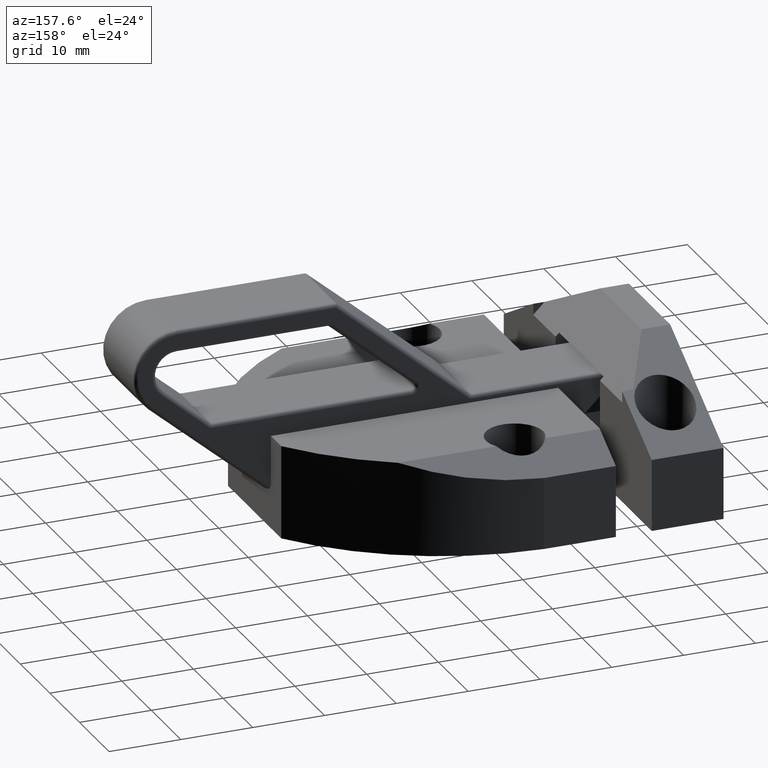
[diagram: clean part render]
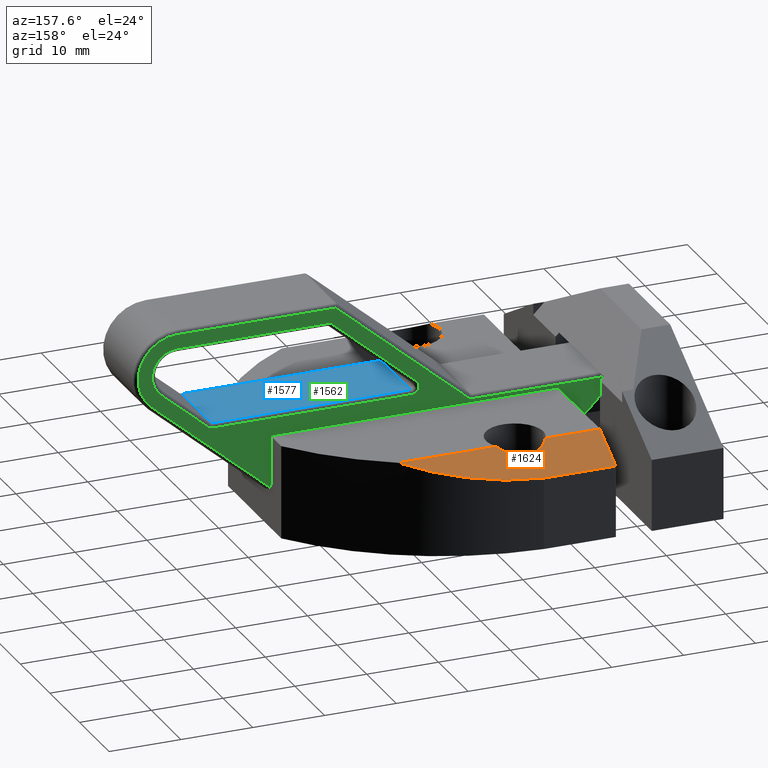
[diagram: same view with three faces highlighted in distinct colors, each labeled with its STEP entity id]
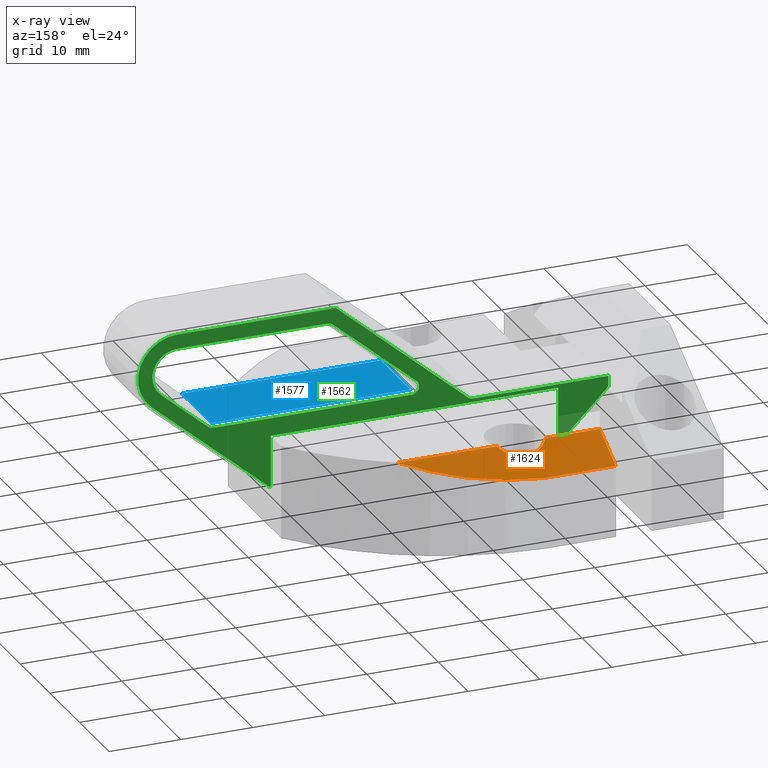
[diagram: x-ray of the same camera — body ghosted, the three highlighted faces saturated]
A machine part, auxiliary view with three faces highlighted in distinct colors.
The next image is the same camera in x-ray (body ghosted, the three faces saturated) — at least one of them is partly hidden behind the body in this view.
Their STEP definitions:

[orange] entity #1624 — the highlighted planar face has unit normal (0, 0.4856, 0.8742).
#83=PLANE('',#1834);
#96=ELLIPSE('',#1814,4.5758356182166,4.00000000000004);
#98=ELLIPSE('',#1835,45.7583561821172,39.9999999999772);
#185=FACE_OUTER_BOUND('',#287,.T.);
#287=EDGE_LOOP('',(#1462,#1463,#1464,#1465,#1466,#1467));
#414=LINE('',#2799,#548);
#423=LINE('',#2818,#557);
#426=LINE('',#2828,#560);
#427=LINE('',#2829,#561);
#548=VECTOR('',#2315,1000.);
#557=VECTOR('',#2330,1000.);
#560=VECTOR('',#2343,1000.);
#561=VECTOR('',#2344,1000.);
#775=VERTEX_POINT('',#2761);
#776=VERTEX_POINT('',#2763);
#790=VERTEX_POINT('',#2796);
#791=VERTEX_POINT('',#2798);
#798=VERTEX_POINT('',#2817);
#800=VERTEX_POINT('',#2826);
#997=EDGE_CURVE('',#775,#776,#96,.T.);
#1014=EDGE_CURVE('',#790,#791,#414,.T.);
#1023=EDGE_CURVE('',#798,#791,#423,.T.);
#1028=EDGE_CURVE('',#798,#800,#98,.T.);
#1029=EDGE_CURVE('',#790,#776,#426,.T.);
#1030=EDGE_CURVE('',#775,#800,#427,.T.);
#1462=ORIENTED_EDGE('',*,*,#1028,.F.);
#1463=ORIENTED_EDGE('',*,*,#1023,.T.);
#1464=ORIENTED_EDGE('',*,*,#1014,.F.);
#1465=ORIENTED_EDGE('',*,*,#1029,.T.);
#1466=ORIENTED_EDGE('',*,*,#997,.F.);
#1467=ORIENTED_EDGE('',*,*,#1030,.T.);
#1624=ADVANCED_FACE('',(#185),#83,.T.);
#1814=AXIS2_PLACEMENT_3D('',#2764,#2281,#2282);
#1834=AXIS2_PLACEMENT_3D('',#2825,#2339,#2340);
#1835=AXIS2_PLACEMENT_3D('',#2827,#2341,#2342);
#2281=DIRECTION('center_axis',(0.,0.48564293117863,0.874157276121539));
#2282=DIRECTION('ref_axis',(-8.8056630401086E-16,-0.874157276121539,0.48564293117863));
#2315=DIRECTION('',(0.,0.874157276121537,-0.485642931178632));
#2330=DIRECTION('',(-1.,0.,0.));
#2339=DIRECTION('center_axis',(0.,0.485642931178632,0.874157276121538));
#2340=DIRECTION('ref_axis',(0.,-0.874157276121538,0.485642931178632));
#2341=DIRECTION('center_axis',(6.50257668993489E-16,-0.485642931178631,
-0.874157276121538));
#2342=DIRECTION('ref_axis',(-1.07765078553861E-12,0.874157276121538,-0.485642931178631));
#2343=DIRECTION('',(1.,0.,0.));
#2344=DIRECTION('',(1.,0.,0.));
#2761=CARTESIAN_POINT('',(29.4044089061098,19.6,13.));
#2763=CARTESIAN_POINT('',(22.5955910938902,19.6,13.));
#2764=CARTESIAN_POINT('Origin',(26.,17.4999999999999,14.1666666666667));
#2796=CARTESIAN_POINT('',(15.,19.6,13.));
#2798=CARTESIAN_POINT('',(15.,25.,10.));
#2799=CARTESIAN_POINT('',(15.,25.,10.));
#2817=CARTESIAN_POINT('',(25.,25.,10.));
#2818=CARTESIAN_POINT('',(15.,25.,10.));
#2825=CARTESIAN_POINT('Origin',(-35.0899191454728,25.,10.));
#2826=CARTESIAN_POINT('',(43.1213157789052,19.6,13.));
#2827=CARTESIAN_POINT('Origin',(22.9610663621468,-14.9480005709558,32.1933336505309));
#2828=CARTESIAN_POINT('',(-35.0899191454728,19.6,13.));
#2829=CARTESIAN_POINT('',(-35.0899191454728,19.6,13.));

[blue] entity #1577 — the highlighted planar face has unit normal (0, 0, 1).
#76=PLANE('',#1727);
#138=FACE_OUTER_BOUND('',#238,.T.);
#238=EDGE_LOOP('',(#1258,#1259,#1260,#1261));
#398=LINE('',#2653,#532);
#399=LINE('',#2655,#533);
#400=LINE('',#2657,#534);
#401=LINE('',#2658,#535);
#532=VECTOR('',#2099,1000.);
#533=VECTOR('',#2100,1000.);
#534=VECTOR('',#2101,1000.);
#535=VECTOR('',#2102,1000.);
#760=VERTEX_POINT('',#2651);
#761=VERTEX_POINT('',#2652);
#762=VERTEX_POINT('',#2654);
#763=VERTEX_POINT('',#2656);
#940=EDGE_CURVE('',#760,#761,#398,.T.);
#941=EDGE_CURVE('',#761,#762,#399,.T.);
#942=EDGE_CURVE('',#762,#763,#400,.T.);
#943=EDGE_CURVE('',#763,#760,#401,.T.);
#1258=ORIENTED_EDGE('',*,*,#940,.T.);
#1259=ORIENTED_EDGE('',*,*,#941,.T.);
#1260=ORIENTED_EDGE('',*,*,#942,.T.);
#1261=ORIENTED_EDGE('',*,*,#943,.T.);
#1577=ADVANCED_FACE('',(#138),#76,.T.);
#1727=AXIS2_PLACEMENT_3D('',#2650,#2097,#2098);
#2097=DIRECTION('center_axis',(0.,0.,1.));
#2098=DIRECTION('ref_axis',(1.,0.,0.));
#2099=DIRECTION('',(0.,1.,0.));
#2100=DIRECTION('',(-1.,0.,0.));
#2101=DIRECTION('',(0.,-1.,0.));
#2102=DIRECTION('',(1.,0.,0.));
#2650=CARTESIAN_POINT('Origin',(34.0074123342945,5.5,16.));
#2651=CARTESIAN_POINT('',(63.070970082853,-5.,16.));
#2652=CARTESIAN_POINT('',(63.070970082853,5.,16.));
#2653=CARTESIAN_POINT('',(63.070970082853,5.5,16.));
#2654=CARTESIAN_POINT('',(35.3622627485596,5.,16.));
#2655=CARTESIAN_POINT('',(34.0074123342945,5.,16.));
#2656=CARTESIAN_POINT('',(35.3622627485596,-5.,16.));
#2657=CARTESIAN_POINT('',(35.3622627485596,-5.5,16.));
#2658=CARTESIAN_POINT('',(34.0074123342945,-5.,16.));

[green] entity #1562 — the highlighted planar face has unit normal (0, -1, 0).
#39=FACE_BOUND('',#222,.T.);
#63=PLANE('',#1696);
#123=FACE_OUTER_BOUND('',#221,.T.);
#221=EDGE_LOOP('',(#1166,#1167,#1168,#1169,#1170,#1171,#1172,#1173,#1174,
#1175,#1176,#1177));
#222=EDGE_LOOP('',(#1178,#1179,#1180,#1181,#1182,#1183,#1184,#1185));
#344=LINE('',#2509,#478);
#345=LINE('',#2511,#479);
#346=LINE('',#2513,#480);
#347=LINE('',#2515,#481);
#348=LINE('',#2517,#482);
#349=LINE('',#2519,#483);
#350=LINE('',#2521,#484);
#351=LINE('',#2525,#485);
#352=LINE('',#2527,#486);
#353=LINE('',#2531,#487);
#354=LINE('',#2535,#488);
#355=LINE('',#2539,#489);
#356=LINE('',#2543,#490);
#478=VECTOR('',#1983,1000.);
#479=VECTOR('',#1984,1000.);
#480=VECTOR('',#1985,1000.);
#481=VECTOR('',#1986,1000.);
#482=VECTOR('',#1987,1000.);
#483=VECTOR('',#1988,1000.);
#484=VECTOR('',#1989,1000.);
#485=VECTOR('',#1992,1000.);
#486=VECTOR('',#1993,1000.);
#487=VECTOR('',#1996,1000.);
#488=VECTOR('',#1999,1000.);
#489=VECTOR('',#2002,1000.);
#490=VECTOR('',#2005,1000.);
#577=CIRCLE('',#1695,0.5);
#578=CIRCLE('',#1697,1.);
#579=CIRCLE('',#1698,5.5);
#580=CIRCLE('',#1699,1.);
#581=CIRCLE('',#1700,1.);
#582=CIRCLE('',#1701,3.5);
#583=CIRCLE('',#1702,1.);
#697=VERTEX_POINT('',#2496);
#701=VERTEX_POINT('',#2504);
#702=VERTEX_POINT('',#2508);
#703=VERTEX_POINT('',#2510);
#704=VERTEX_POINT('',#2512);
#705=VERTEX_POINT('',#2514);
#706=VERTEX_POINT('',#2516);
#707=VERTEX_POINT('',#2518);
#708=VERTEX_POINT('',#2520);
#709=VERTEX_POINT('',#2522);
#710=VERTEX_POINT('',#2524);
#711=VERTEX_POINT('',#2526);
#712=VERTEX_POINT('',#2529);
#713=VERTEX_POINT('',#2530);
#714=VERTEX_POINT('',#2532);
#715=VERTEX_POINT('',#2534);
#716=VERTEX_POINT('',#2536);
#717=VERTEX_POINT('',#2538);
#718=VERTEX_POINT('',#2540);
#719=VERTEX_POINT('',#2542);
#869=EDGE_CURVE('',#697,#701,#577,.T.);
#870=EDGE_CURVE('',#702,#697,#344,.T.);
#871=EDGE_CURVE('',#701,#703,#345,.T.);
#872=EDGE_CURVE('',#703,#704,#346,.T.);
#873=EDGE_CURVE('',#704,#705,#347,.T.);
#874=EDGE_CURVE('',#705,#706,#348,.T.);
#875=EDGE_CURVE('',#706,#707,#349,.T.);
#876=EDGE_CURVE('',#707,#708,#350,.T.);
#877=EDGE_CURVE('',#709,#708,#578,.T.);
#878=EDGE_CURVE('',#709,#710,#351,.T.);
#879=EDGE_CURVE('',#710,#711,#352,.T.);
#880=EDGE_CURVE('',#711,#702,#579,.T.);
#881=EDGE_CURVE('',#712,#713,#353,.T.);
#882=EDGE_CURVE('',#713,#714,#580,.T.);
#883=EDGE_CURVE('',#714,#715,#354,.T.);
#884=EDGE_CURVE('',#716,#715,#581,.T.);
#885=EDGE_CURVE('',#716,#717,#355,.T.);
#886=EDGE_CURVE('',#717,#718,#582,.T.);
#887=EDGE_CURVE('',#718,#719,#356,.T.);
#888=EDGE_CURVE('',#712,#719,#583,.T.);
#1166=ORIENTED_EDGE('',*,*,#870,.T.);
#1167=ORIENTED_EDGE('',*,*,#869,.T.);
#1168=ORIENTED_EDGE('',*,*,#871,.T.);
#1169=ORIENTED_EDGE('',*,*,#872,.T.);
#1170=ORIENTED_EDGE('',*,*,#873,.T.);
#1171=ORIENTED_EDGE('',*,*,#874,.T.);
#1172=ORIENTED_EDGE('',*,*,#875,.T.);
#1173=ORIENTED_EDGE('',*,*,#876,.T.);
#1174=ORIENTED_EDGE('',*,*,#877,.F.);
#1175=ORIENTED_EDGE('',*,*,#878,.T.);
#1176=ORIENTED_EDGE('',*,*,#879,.T.);
#1177=ORIENTED_EDGE('',*,*,#880,.T.);
#1178=ORIENTED_EDGE('',*,*,#881,.T.);
#1179=ORIENTED_EDGE('',*,*,#882,.T.);
#1180=ORIENTED_EDGE('',*,*,#883,.T.);
#1181=ORIENTED_EDGE('',*,*,#884,.F.);
#1182=ORIENTED_EDGE('',*,*,#885,.T.);
#1183=ORIENTED_EDGE('',*,*,#886,.T.);
#1184=ORIENTED_EDGE('',*,*,#887,.T.);
#1185=ORIENTED_EDGE('',*,*,#888,.F.);
#1562=ADVANCED_FACE('',(#123,#39),#63,.F.);
#1695=AXIS2_PLACEMENT_3D('',#2506,#1979,#1980);
#1696=AXIS2_PLACEMENT_3D('',#2507,#1981,#1982);
#1697=AXIS2_PLACEMENT_3D('',#2523,#1990,#1991);
#1698=AXIS2_PLACEMENT_3D('',#2528,#1994,#1995);
#1699=AXIS2_PLACEMENT_3D('',#2533,#1997,#1998);
#1700=AXIS2_PLACEMENT_3D('',#2537,#2000,#2001);
#1701=AXIS2_PLACEMENT_3D('',#2541,#2003,#2004);
#1702=AXIS2_PLACEMENT_3D('',#2544,#2006,#2007);
#1979=DIRECTION('center_axis',(0.,1.,0.));
#1980=DIRECTION('ref_axis',(0.,0.,-1.));
#1981=DIRECTION('center_axis',(0.,-1.,0.));
#1982=DIRECTION('ref_axis',(0.,0.,-1.));
#1983=DIRECTION('',(-0.760263094380391,0.,-0.649615291786725));
#1984=DIRECTION('',(0.,0.,1.));
#1985=DIRECTION('',(-1.,0.,0.));
#1986=DIRECTION('',(0.,0.,-1.));
#1987=DIRECTION('',(-0.707106781186551,0.,0.707106781186544));
#1988=DIRECTION('',(0.,0.,1.));
#1989=DIRECTION('',(1.,0.,-9.10681105728621E-17));
#1990=DIRECTION('center_axis',(0.,1.,0.));
#1991=DIRECTION('ref_axis',(-1.38777878078144E-14,0.,-1.));
#1992=DIRECTION('',(0.760263094380392,0.,0.649615291786725));
#1993=DIRECTION('',(1.,0.,-1.56097798113072E-16));
#1994=DIRECTION('center_axis',(0.,1.,0.));
#1995=DIRECTION('ref_axis',(2.52323414687535E-15,0.,-1.));
#1996=DIRECTION('',(-0.760263094380391,0.,-0.649615291786725));
#1997=DIRECTION('center_axis',(0.,-1.,0.));
#1998=DIRECTION('ref_axis',(0.,0.,-1.));
#1999=DIRECTION('',(1.,0.,0.));
#2000=DIRECTION('center_axis',(0.,1.,0.));
#2001=DIRECTION('ref_axis',(0.,0.,-1.));
#2002=DIRECTION('',(0.760263094380391,0.,0.649615291786726));
#2003=DIRECTION('center_axis',(0.,-1.,0.));
#2004=DIRECTION('ref_axis',(0.,0.,-1.));
#2005=DIRECTION('',(-1.,0.,1.6428101007752E-16));
#2006=DIRECTION('center_axis',(0.,1.,0.));
#2007=DIRECTION('ref_axis',(1.38777878078144E-14,0.,-1.));
#2496=CARTESIAN_POINT('',(55.1198684528098,5.5,5.76009000597224));
#2504=CARTESIAN_POINT('',(55.,5.5,6.0848976518656));
#2506=CARTESIAN_POINT('Origin',(55.5,5.5,6.0848976518656));
#2507=CARTESIAN_POINT('Origin',(68.,5.5,24.));
#2508=CARTESIAN_POINT('',(71.572884104827,5.5,19.8185529809078));
#2509=CARTESIAN_POINT('',(71.572884104827,5.5,19.8185529809078));
#2510=CARTESIAN_POINT('',(55.,5.5,13.));
#2511=CARTESIAN_POINT('',(55.,5.5,13.));
#2512=CARTESIAN_POINT('',(15.,5.5,13.));
#2513=CARTESIAN_POINT('',(15.,5.5,13.));
#2514=CARTESIAN_POINT('',(15.,5.5,5.));
#2515=CARTESIAN_POINT('',(15.,5.5,5.));
#2516=CARTESIAN_POINT('',(8.,5.5,11.9999999999999));
#2517=CARTESIAN_POINT('',(8.,5.5,11.9999999999999));
#2518=CARTESIAN_POINT('',(8.,5.5,13.5));
#2519=CARTESIAN_POINT('',(8.,5.5,14.));
#2520=CARTESIAN_POINT('',(26.8641158321332,5.5,13.5));
#2521=CARTESIAN_POINT('',(68.,5.5,13.5));
#2522=CARTESIAN_POINT('',(27.5137311239199,5.5,13.7397369056196));
#2523=CARTESIAN_POINT('Origin',(26.8641158321332,5.5,14.5));
#2524=CARTESIAN_POINT('',(45.958411444525,5.5,29.5));
#2525=CARTESIAN_POINT('',(55.9821171019456,5.5,38.0648672460372));
#2526=CARTESIAN_POINT('',(68.,5.5,29.5));
#2527=CARTESIAN_POINT('',(68.,5.5,29.5));
#2528=CARTESIAN_POINT('Origin',(68.,5.5,24.));
#2529=CARTESIAN_POINT('',(46.4159294452454,5.5,27.2602630943804));
#2530=CARTESIAN_POINT('',(34.7126474567729,5.5,17.2602630943804));
#2531=CARTESIAN_POINT('',(33.6826046884011,5.5,16.3801315471902));
#2532=CARTESIAN_POINT('',(35.3622627485596,5.5,15.5));
#2533=CARTESIAN_POINT('Origin',(35.3622627485596,5.5,16.5));
#2534=CARTESIAN_POINT('',(63.070970082853,5.5,15.5));
#2535=CARTESIAN_POINT('',(63.2554922982709,5.5,15.5));
#2536=CARTESIAN_POINT('',(63.7205853746398,5.5,15.7397369056196));
#2537=CARTESIAN_POINT('Origin',(63.070970082853,5.5,16.5));
#2538=CARTESIAN_POINT('',(70.2736535212536,5.5,21.3390791696686));
#2539=CARTESIAN_POINT('',(70.2736535212536,5.5,21.3390791696686));
#2540=CARTESIAN_POINT('',(68.,5.5,27.5));
#2541=CARTESIAN_POINT('Origin',(68.,5.5,24.));
#2542=CARTESIAN_POINT('',(47.0655447370321,5.5,27.5));
#2543=CARTESIAN_POINT('',(46.8810225216143,5.5,27.5));
#2544=CARTESIAN_POINT('Origin',(47.0655447370321,5.5,26.5));